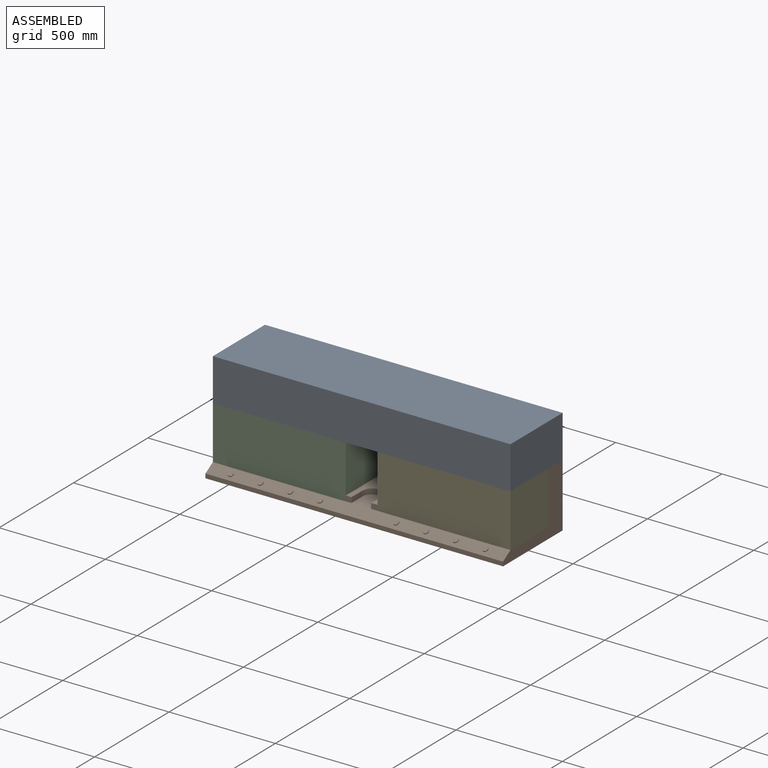
[diagram: assembled view]
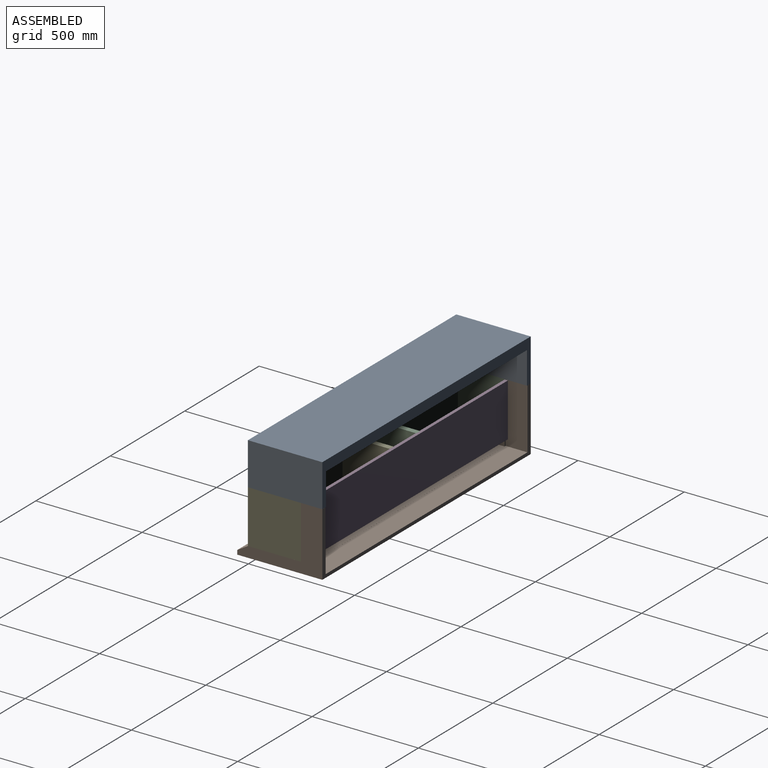
[diagram: assembled view, second angle]
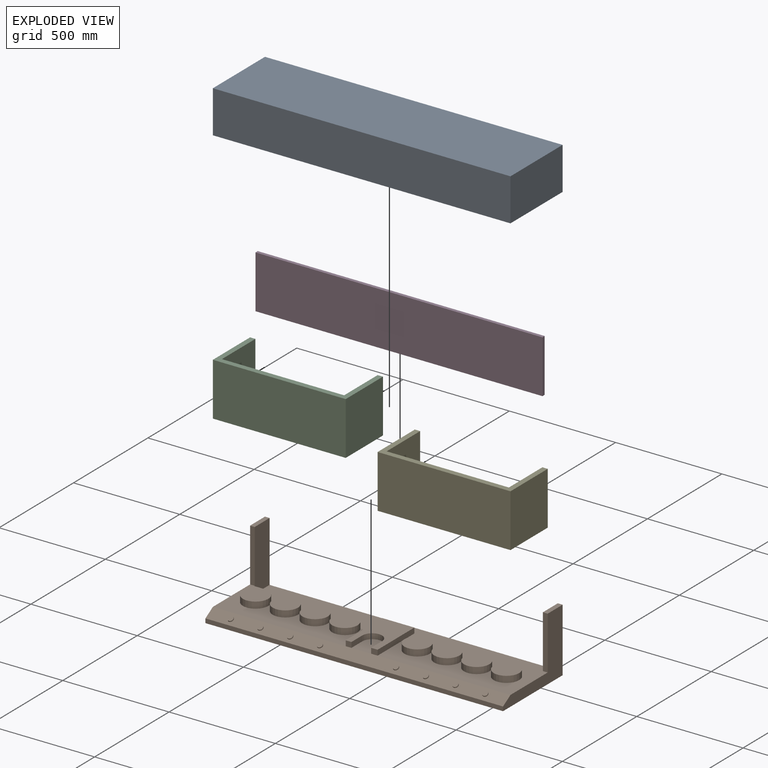
[diagram: exploded view]
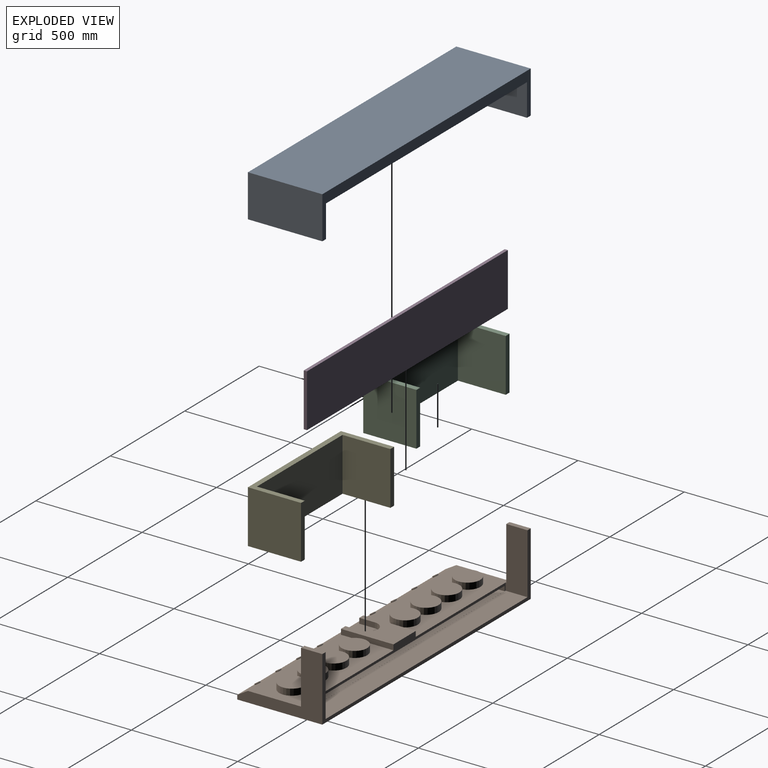
[diagram: exploded view, second angle]
ASSEMBLY  parts=5 mates=4
PART A: 12 faces, bbox 1400x350x200 mm
  f0: plane 1350x208.5mm, normal (0,0,-1), area 281475mm2, adj f7,f8,f9,f11
  f1: plane 1400x350mm, normal (0,0,-1), area 34375mm2, adj f2,f3,f4,f5,f7,f8,f9
  f2: plane 1400x200mm, normal (0,-1,0), area 280000mm2, adj f1,f3,f5,f6
  f3: plane 350x200mm, normal (1,0,0), area 70000mm2, adj f1,f2,f4,f6
  f4: plane 1400x200mm, normal (0,1,0), area 75408.2mm2, adj f1,f3,f5,f6,f7,f9,f10
  f5: plane 350x200mm, normal (-1,0,0), area 70000mm2, adj f1,f2,f4,f6
  f6: plane 1400x350mm, normal (0,0,1), area 490000mm2, adj f2,f3,f4,f5
  f7: plane 337.5x151.55mm, normal (-1,0,0), area 50824.9mm2, adj f0,f1,f4,f8,f10,f11
  f8: plane 1350x150mm, normal (0,1,0), area 202500mm2, adj f0,f1,f7,f9
  f9: plane 337.5x151.55mm, normal (1,0,0), area 50824.9mm2, adj f0,f1,f4,f8,f10,f11
  f10: plane 1350x129mm, normal (0,0,-1), area 174150mm2, adj f4,f7,f9,f11
  f11: plane 1350x1.55mm, normal (0,1,0), area 2091.8mm2, adj f0,f7,f9,f10
PART B: 62 faces, bbox 1400x400x300 mm
  f0: plane 26.87x25mm, normal (0,-1,0), area 671.7mm2, adj f1,f37,f40,f42
  f1: plane 247x150mm, normal (0,0,1), area 26862.6mm2, adj f0,f3,f39,f40,f41,f42,f43,f44
  f2: plane 625x250mm, normal (0,0,1), area 109203.9mm2, adj f3,f8,f19,f21,f23,f25,f27,f29
  f3: plane 1355.7x59.41mm, normal (0,1,0), area 20195.6mm2, adj f1,f2,f7,f29,f30,f31,f32,f33
  f4: plane 100x21.71mm, normal (0,0,1), area 2170.8mm2, adj f5,f6,f9,f31
  f5: plane 1400x300mm, normal (0,1,0), area 34429.4mm2, adj f4,f8,f9,f10,f28,f29,f30,f31
  f6: plane 250x21.71mm, normal (0,-1,0), area 5426.9mm2, adj f4,f7,f9,f31
  f7: plane 625x250mm, normal (0,0,1), area 109201.2mm2, adj f3,f6,f9,f11,f13,f15,f17,f31
  f8: plane 400x300mm, normal (1,0,0), area 44250mm2, adj f2,f5,f10,f27,f28,f37,f38
  f9: plane 400x300mm, normal (-1,0,0), area 44250mm2, adj f4,f5,f6,f7,f10,f37,f38
  f10: plane 1400x400mm, normal (0,0,-1), area 560000mm2, adj f5,f8,f9,f38
  f11: cylinder r=60mm len=120mm, axis (0,0,-1), area 11309.7mm2, adj f7,f12
  f12: plane 120x120mm, normal (0,0,1), area 11309.7mm2, adj f11
  f13: cylinder r=60mm len=120mm, axis (0,0,-1), area 11309.7mm2, adj f7,f14
  f14: plane 120x120mm, normal (0,0,1), area 11309.7mm2, adj f13
  f15: cylinder r=60mm len=120mm, axis (0,0,-1), area 11309.7mm2, adj f7,f16
  f16: plane 120x120mm, normal (0,0,1), area 11309.7mm2, adj f15
  f17: cylinder r=60mm len=120mm, axis (0,0,-1), area 11309.7mm2, adj f7,f18
  f18: plane 120x120mm, normal (0,0,1), area 11309.7mm2, adj f17
  f19: cylinder r=60mm len=120mm, axis (0,0,-1), area 11309.7mm2, adj f2,f20
  f20: plane 120x120mm, normal (0,0,1), area 11309.7mm2, adj f19
  f21: cylinder r=60mm len=120mm, axis (0,0,-1), area 11309.7mm2, adj f2,f22
  f22: plane 120x120mm, normal (0,0,1), area 11309.7mm2, adj f21
  f23: cylinder r=60mm len=120mm, axis (0,0,-1), area 11309.7mm2, adj f2,f24
  f24: plane 120x120mm, normal (0,0,1), area 11309.7mm2, adj f23
  f25: cylinder r=60mm len=120mm, axis (0,0,-1), area 11309.7mm2, adj f2,f26
  f26: plane 120x120mm, normal (0,0,1), area 11309.7mm2, adj f25
  f27: plane 250x22.6mm, normal (0,-1,0), area 5649.3mm2, adj f2,f8,f28,f29
  f28: plane 100x22.6mm, normal (0,0,1), area 2259.7mm2, adj f5,f8,f27,f29
  f29: plane 284.41x103mm, normal (-1,0,0), area 28544mm2, adj f2,f3,f5,f27,f28,f30
  f30: plane 1355.7x103mm, normal (0,0,1), area 139636.6mm2, adj f3,f5,f29,f31
  f31: plane 284.41x103mm, normal (1,0,0), area 28544mm2, adj f3,f4,f5,f6,f7,f30
  f32: plane 114x22.72mm, normal (-1,0,0), area 2590.3mm2, adj f3,f33,f35,f36
  f33: plane 1329.15x114mm, normal (0,0,1), area 151523mm2, adj f3,f32,f34,f36
  f34: plane 114x22.72mm, normal (1,0,0), area 2590.3mm2, adj f3,f33,f35,f36
  f35: plane 1329.15x114mm, normal (0,0,-1), area 151523mm2, adj f3,f32,f34,f36
  f36: plane 1329.15x22.72mm, normal (0,1,0), area 30201.1mm2, adj f32,f33,f34,f35
  f37: plane 1400x50mm, normal (0,-0.51,0.86), area 77706.3mm2, adj f0,f2,f7,f8,f9,f38,f41,f45
  f38: plane 1400x20mm, normal (0,-1,0), area 28000mm2, adj f8,f9,f10,f37
  f39: plane 247x25mm, normal (1,0,0), area 6175mm2, adj f1,f2,f3,f41
  f40: plane 247x25mm, normal (-1,0,0), area 6175mm2, adj f0,f1,f3,f7
  f41: plane 30.27x25mm, normal (0,-1,0), area 756.6mm2, adj f1,f37,f39,f43
  f42: plane 73.23x25mm, normal (1,0,0), area 1830.8mm2, adj f0,f1,f44,f45
  f43: plane 73.23x25mm, normal (-1,0,0), area 1830.8mm2, adj f1,f41,f44,f45
  f44: cylinder r=46.43mm len=92.87mm, axis (0,0,1), area 3646.8mm2, adj f1,f42,f43,f45
  f45: plane 119.66x92.87mm, normal (0,0,1), area 10187.4mm2, adj f37,f42,f43,f44
  f46: cylinder r=12.5mm len=25mm, axis (0,0.51,-0.86), area 392.7mm2, adj f37,f47
  f47: plane 25x21.44mm, normal (0,-0.51,0.86), area 490.9mm2, adj f46
  f48: cylinder r=12.5mm len=25mm, axis (0,0.51,-0.86), area 392.7mm2, adj f37,f49
  f49: plane 25x21.44mm, normal (0,-0.51,0.86), area 490.9mm2, adj f48
  f50: cylinder r=12.5mm len=25mm, axis (0,0.51,-0.86), area 392.7mm2, adj f37,f51
  f51: plane 25x21.44mm, normal (0,-0.51,0.86), area 490.9mm2, adj f50
  f52: cylinder r=12.5mm len=25mm, axis (0,0.51,-0.86), area 392.7mm2, adj f37,f53
  f53: plane 25x21.44mm, normal (0,-0.51,0.86), area 490.9mm2, adj f52
  f54: cylinder r=12.5mm len=25mm, axis (0,0.51,-0.86), area 392.7mm2, adj f37,f55
  f55: plane 25x21.44mm, normal (0,-0.51,0.86), area 490.9mm2, adj f54
  f56: cylinder r=12.5mm len=25mm, axis (0,0.51,-0.86), area 392.7mm2, adj f37,f57
  f57: plane 25x21.44mm, normal (0,-0.51,0.86), area 490.9mm2, adj f56
  f58: cylinder r=12.5mm len=25mm, axis (0,0.51,-0.86), area 392.7mm2, adj f37,f59
  f59: plane 25x21.44mm, normal (0,-0.51,0.86), area 490.9mm2, adj f58
  f60: cylinder r=12.5mm len=25mm, axis (0,0.51,-0.86), area 392.7mm2, adj f37,f61
  f61: plane 25x21.44mm, normal (0,-0.51,0.86), area 490.9mm2, adj f60
PART C: 10 faces, bbox 625x250x250 mm
  f0: plane 250x25mm, normal (0,0,-1), area 6250mm2, adj f1,f7,f8,f9
  f1: plane 250x225mm, normal (1,0,0), area 56250mm2, adj f0,f2,f8,f9
  f2: plane 575x250mm, normal (0,0,-1), area 143750mm2, adj f1,f3,f8,f9
  f3: plane 250x225mm, normal (-1,0,0), area 56250mm2, adj f2,f4,f8,f9
  f4: plane 250x25mm, normal (0,0,-1), area 6250mm2, adj f3,f5,f8,f9
  f5: plane 250x250mm, normal (1,0,0), area 62500mm2, adj f4,f6,f8,f9
  f6: plane 625x250mm, normal (0,0,1), area 156250mm2, adj f5,f7,f8,f9
  f7: plane 250x250mm, normal (-1,0,0), area 62500mm2, adj f0,f6,f8,f9
  f8: plane 625x250mm, normal (0,-1,0), area 26875mm2, adj f0,f1,f2,f3,f4,f5,f6,f7
  f9: plane 625x250mm, normal (0,1,0), area 26875mm2, adj f0,f1,f2,f3,f4,f5,f6,f7
PART D: 6 faces, bbox 1350x250x15 mm
  f0: plane 1350x15mm, normal (0,-1,0), area 20250mm2, adj f1,f3,f4,f5
  f1: plane 250x15mm, normal (1,0,0), area 3750mm2, adj f0,f2,f4,f5
  f2: plane 1350x15mm, normal (0,1,0), area 20250mm2, adj f1,f3,f4,f5
  f3: plane 250x15mm, normal (-1,0,0), area 3750mm2, adj f0,f2,f4,f5
  f4: plane 1350x250mm, normal (0,0,1), area 337500mm2, adj f0,f1,f2,f3
  f5: plane 1350x250mm, normal (0,0,-1), area 337500mm2, adj f0,f1,f2,f3
PART E: same geometry as C
PLACE A t=(-121.26,-71.69,267.58)mm
PLACE B t=(-121.26,-71.69,-32.42)mm
PLACE C rot(axis=(1,0,0),90deg) t=(-508.76,-121.69,267.58)mm
PLACE D rot(axis=(1,0,0),90deg) t=(-118.85,15.31,142.58)mm
PLACE E rot(axis=(1,0,0),90deg) t=(266.24,-121.69,267.58)mm
MATE fastened A.f1 <-> B.f28  axis (0,0,1) through (578.74,103.31,267.58)mm
MATE fastened E.f8 <-> B.f2  axis (0,0,-1) through (578.74,-246.69,17.58)mm
MATE fastened D.f0 <-> B.f2  axis (0,0,-1) through (556.15,0.31,17.58)mm
MATE fastened C.f8 <-> B.f7  axis (0,0,-1) through (-821.26,-246.69,17.58)mm
